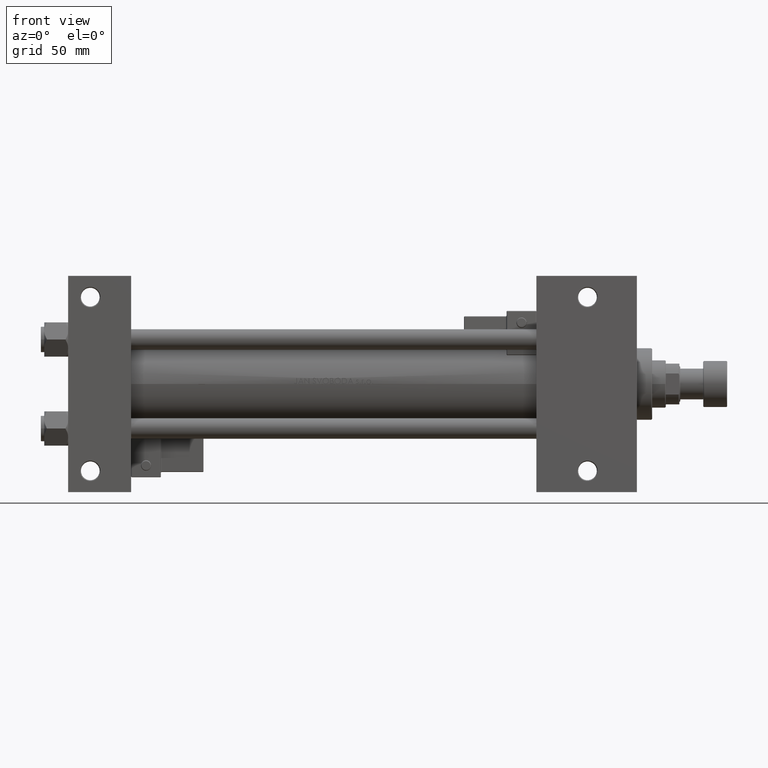
[diagram: clean part render]
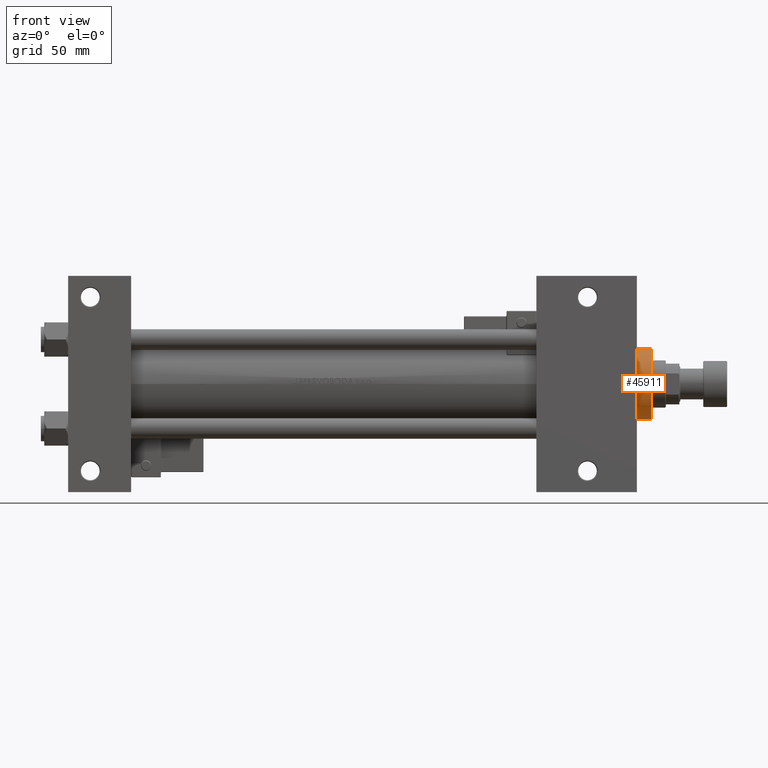
[diagram: same view with one face highlighted and labeled with its STEP entity id]
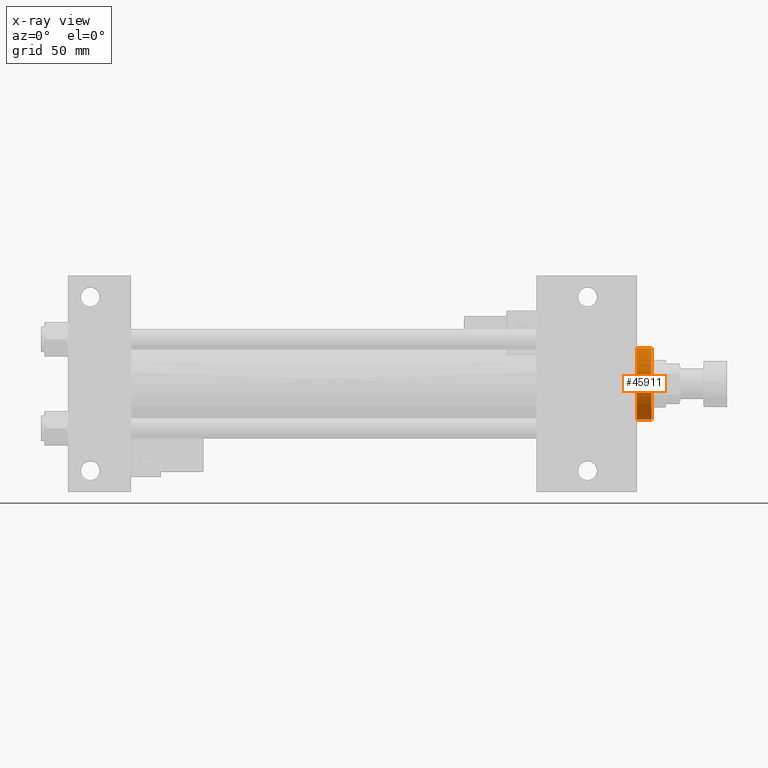
[diagram: x-ray of the same camera — body ghosted, the highlighted face saturated]
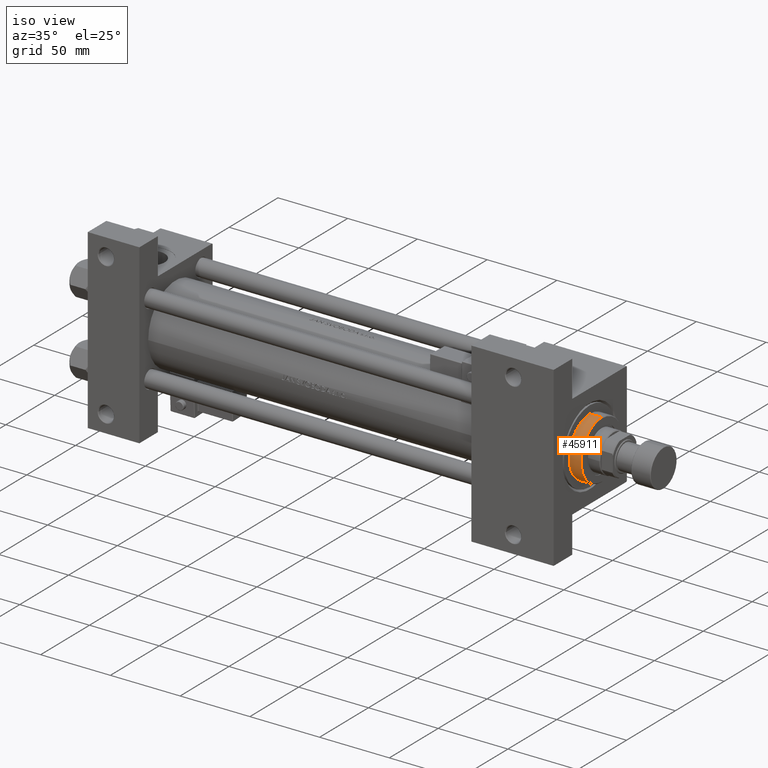
[diagram: same view with one face highlighted and labeled with its STEP entity id]
A machine part, front view. The second image highlights one B-rep face of the part: STEP entity #45911.
The next image is the same camera in x-ray: the body ghosted, the highlighted face saturated — about 0% of this face is hidden behind the body in this view.
A second angle (iso view) of the same face is appended — the face is thin or edge-on in the first view.
In plain terms, the highlighted cylindrical surface (edge-blend (fillet) strip) has radius 21 mm, axis along (-1, -0, 0).
Its self-contained STEP definition (entity closure, byte-faithful):
#3021 = CARTESIAN_POINT ( 'NONE',  ( 0.000000000000000000, 0.000000000000000000, 28.69999999999999929 ) ) ;
#3053 = CARTESIAN_POINT ( 'NONE',  ( 21.00000000000000000, 2.571758278209441661E-15, 28.69999999999999929 ) ) ;
#3088 = LINE ( 'NONE', #38516, #40772 ) ;
#5862 = EDGE_CURVE ( 'NONE', #41582, #51430, #42173, .T. ) ;
#7321 = DIRECTION ( 'NONE',  ( -0.000000000000000000, -0.000000000000000000, -1.000000000000000000 ) ) ;
#10903 = CARTESIAN_POINT ( 'NONE',  ( -21.00000000000000000, 0.000000000000000000, 37.69999999999999574 ) ) ;
#12193 = VECTOR ( 'NONE', #43129, 1000.000000000000000 ) ;
#12282 = EDGE_CURVE ( 'NONE', #17181, #44094, #43141, .T. ) ;
#14913 = ORIENTED_EDGE ( 'NONE', *, *, #18226, .T. ) ;
#16997 = AXIS2_PLACEMENT_3D ( 'NONE', #3021, #19137, #51902 ) ;
#17181 = VERTEX_POINT ( 'NONE', #48349 ) ;
#18226 = EDGE_CURVE ( 'NONE', #51430, #17181, #30958, .T. ) ;
#19137 = DIRECTION ( 'NONE',  ( 0.000000000000000000, 0.000000000000000000, 1.000000000000000000 ) ) ;
#19451 = FACE_OUTER_BOUND ( 'NONE', #30947, .T. ) ;
#20021 = CARTESIAN_POINT ( 'NONE',  ( 21.00000000000000000, 2.571758278209441661E-15, 37.19999999999999574 ) ) ;
#26608 = DIRECTION ( 'NONE',  ( -0.000000000000000000, -0.000000000000000000, -1.000000000000000000 ) ) ;
#30947 = EDGE_LOOP ( 'NONE', ( #42308, #51513, #14913, #42788 ) ) ;
#30958 = LINE ( 'NONE', #10903, #12193 ) ;
#34523 = CARTESIAN_POINT ( 'NONE',  ( 0.000000000000000000, 0.000000000000000000, 37.69999999999999574 ) ) ;
#35454 = EDGE_CURVE ( 'NONE', #41582, #44094, #3088, .T. ) ;
#35990 = DIRECTION ( 'NONE',  ( 0.000000000000000000, 0.000000000000000000, -1.000000000000000000 ) ) ;
#36949 = AXIS2_PLACEMENT_3D ( 'NONE', #34523, #26608, #42729 ) ;
#38384 = CARTESIAN_POINT ( 'NONE',  ( -21.00000000000000000, 0.000000000000000000, 37.19999999999999574 ) ) ;
#38516 = CARTESIAN_POINT ( 'NONE',  ( 21.00000000000000000, 2.571758278209441661E-15, 37.69999999999999574 ) ) ;
#40772 = VECTOR ( 'NONE', #7321, 1000.000000000000000 ) ;
#41582 = VERTEX_POINT ( 'NONE', #20021 ) ;
#42173 = CIRCLE ( 'NONE', #48916, 21.00000000000000000 ) ;
#42308 = ORIENTED_EDGE ( 'NONE', *, *, #35454, .F. ) ;
#42729 = DIRECTION ( 'NONE',  ( -1.000000000000000000, 0.000000000000000000, 0.000000000000000000 ) ) ;
#42788 = ORIENTED_EDGE ( 'NONE', *, *, #12282, .T. ) ;
#43129 = DIRECTION ( 'NONE',  ( -0.000000000000000000, -0.000000000000000000, -1.000000000000000000 ) ) ;
#43141 = CIRCLE ( 'NONE', #16997, 21.00000000000000000 ) ;
#43935 = CARTESIAN_POINT ( 'NONE',  ( 0.000000000000000000, 0.000000000000000000, 37.19999999999999574 ) ) ;
#44094 = VERTEX_POINT ( 'NONE', #3053 ) ;
#45911 = ADVANCED_FACE ( 'NONE', ( #19451 ), #47727, .T. ) ;
#47727 = CYLINDRICAL_SURFACE ( 'NONE', #36949, 21.00000000000000000 ) ;
#48349 = CARTESIAN_POINT ( 'NONE',  ( -21.00000000000000000, 0.000000000000000000, 28.69999999999999929 ) ) ;
#48916 = AXIS2_PLACEMENT_3D ( 'NONE', #43935, #35990, #51875 ) ;
#51430 = VERTEX_POINT ( 'NONE', #38384 ) ;
#51513 = ORIENTED_EDGE ( 'NONE', *, *, #5862, .T. ) ;
#51875 = DIRECTION ( 'NONE',  ( 1.000000000000000000, 0.000000000000000000, 0.000000000000000000 ) ) ;
#51902 = DIRECTION ( 'NONE',  ( 1.000000000000000000, 0.000000000000000000, 0.000000000000000000 ) ) ;